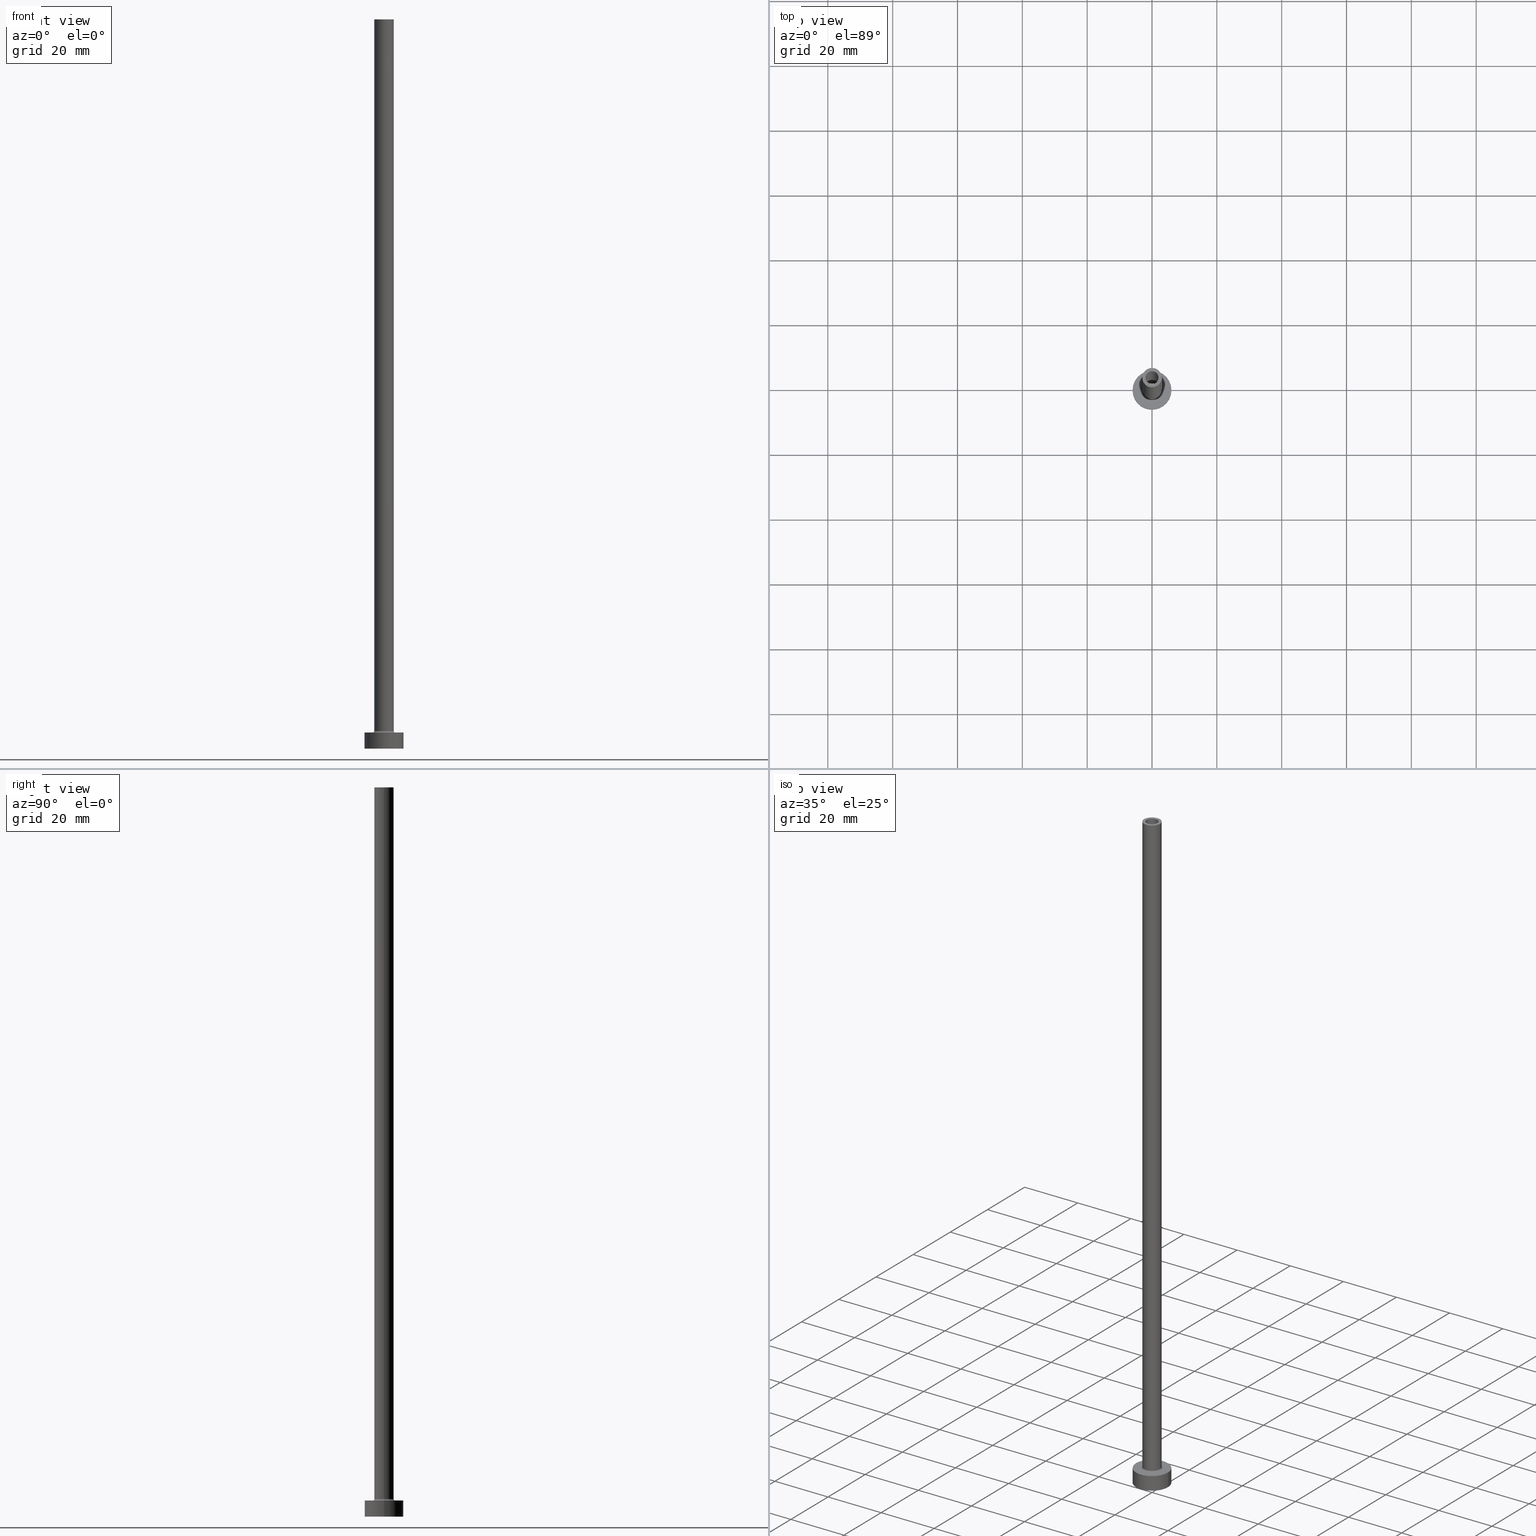
[diagram: canonical four-view strip — front | top / right | iso, engineering-drawing reading convention]
A machine part, canonical four-view strip (front | top / right | iso — engineering-drawing reading convention). The complete STEP part file that produces these views, byte-faithful:
ISO-10303-21;
HEADER;
FILE_DESCRIPTION (( 'STEP AP203' ),
    '1' );
FILE_NAME ('41ae.STEP',
    '2023-02-13T17:45:14',
    ( '' ),
    ( '' ),
    'SwSTEP 2.0',
    'SolidWorks 2019',
    '' );
FILE_SCHEMA (( 'CONFIG_CONTROL_DESIGN' ));
ENDSEC;

DATA;
#1 = LINE ( 'NONE', #429, #298 ) ;
#2 = LINE ( 'NONE', #175, #439 ) ;
#3 = EDGE_LOOP ( 'NONE', ( #438, #216, #252, #192 ) ) ;
#4 = APPLICATION_CONTEXT ( 'configuration controlled 3d designs of mechanical parts and assemblies' ) ;
#5 = DIRECTION ( 'NONE',  ( 0.000000000000000000, 0.000000000000000000, -1.000000000000000000 ) ) ;
#6 = EDGE_LOOP ( 'NONE', ( #37, #8 ) ) ;
#7 = DIRECTION ( 'NONE',  ( 0.000000000000000000, 0.000000000000000000, 1.000000000000000000 ) ) ;
#8 = ORIENTED_EDGE ( 'NONE', *, *, #83, .F. ) ;
#9 = DIRECTION ( 'NONE',  ( 0.000000000000000000, 0.000000000000000000, -1.000000000000000000 ) ) ;
#10 = ORIENTED_EDGE ( 'NONE', *, *, #350, .F. ) ;
#11 = DATE_TIME_ROLE ( 'creation_date' ) ;
#12 = ORIENTED_EDGE ( 'NONE', *, *, #214, .T. ) ;
#13 = CIRCLE ( 'NONE', #351, 3.000000000000000444 ) ;
#14 = ORIENTED_EDGE ( 'NONE', *, *, #276, .F. ) ;
#15 = PERSON_AND_ORGANIZATION_ROLE ( 'creator' ) ;
#16 = DIRECTION ( 'NONE',  ( 0.000000000000000000, 0.000000000000000000, 1.000000000000000000 ) ) ;
#17 = ADVANCED_FACE ( 'NONE', ( #50, #263 ), #377, .F. ) ;
#18 = APPROVAL_DATE_TIME ( #150, #193 ) ;
#19 = DIRECTION ( 'NONE',  ( 0.000000000000000000, 0.000000000000000000, 1.000000000000000000 ) ) ;
#20 = EDGE_CURVE ( 'NONE', #200, #260, #323, .T. ) ;
#21 = AXIS2_PLACEMENT_3D ( 'NONE', #108, #72, #80 ) ;
#22 = DIRECTION ( 'NONE',  ( 1.000000000000000000, 0.000000000000000000, 0.000000000000000000 ) ) ;
#23 = DIRECTION ( 'NONE',  ( 0.000000000000000000, 0.000000000000000000, -1.000000000000000000 ) ) ;
#24 = EDGE_CURVE ( 'NONE', #146, #291, #444, .T. ) ;
#25 = DIRECTION ( 'NONE',  ( 1.000000000000000000, 0.000000000000000000, 0.000000000000000000 ) ) ;
#26 = CARTESIAN_POINT ( 'NONE',  ( 2.149999999999999911, 2.632990618166809235E-16, 180.0000000000000000 ) ) ;
#27 = APPROVAL_PERSON_ORGANIZATION ( #445, #193, #262 ) ;
#28 = ADVANCED_FACE ( 'NONE', ( #304 ), #236, .F. ) ;
#29 = CARTESIAN_POINT ( 'NONE',  ( 6.000000000000000888, 7.347880794884120722E-16, 5.000000000000000000 ) ) ;
#30 = CARTESIAN_POINT ( 'NONE',  ( -3.000000000000000444, 0.000000000000000000, 225.0000000000000000 ) ) ;
#31 = DIRECTION ( 'NONE',  ( 0.000000000000000000, 0.000000000000000000, 1.000000000000000000 ) ) ;
#32 = MANIFOLD_SOLID_BREP ( 'Odebrat vysunut�m4', #68 ) ;
#33 = LOCAL_TIME ( 18, 45, 14.00000000000000000, #385 ) ;
#34 = DIRECTION ( 'NONE',  ( 0.000000000000000000, 0.000000000000000000, 1.000000000000000000 ) ) ;
#35 = CIRCLE ( 'NONE', #258, 2.149999999999999911 ) ;
#36 = CARTESIAN_POINT ( 'NONE',  ( 0.000000000000000000, 0.000000000000000000, 5.000000000000000000 ) ) ;
#37 = ORIENTED_EDGE ( 'NONE', *, *, #286, .F. ) ;
#38 = CARTESIAN_POINT ( 'NONE',  ( 0.000000000000000000, 0.000000000000000000, 180.0000000000000000 ) ) ;
#39 = ORIENTED_EDGE ( 'NONE', *, *, #457, .F. ) ;
#40 = CARTESIAN_POINT ( 'NONE',  ( 0.000000000000000000, 0.000000000000000000, 225.0000000000000000 ) ) ;
#41 = EDGE_LOOP ( 'NONE', ( #60, #10 ) ) ;
#42 = AXIS2_PLACEMENT_3D ( 'NONE', #171, #131, #205 ) ;
#43 = CARTESIAN_POINT ( 'NONE',  ( 0.000000000000000000, 0.000000000000000000, 225.0000000000000000 ) ) ;
#44 = ORIENTED_EDGE ( 'NONE', *, *, #296, .T. ) ;
#45 = APPLICATION_PROTOCOL_DEFINITION ( 'international standard', 'config_control_design', 1994, #4 ) ;
#46 = EDGE_LOOP ( 'NONE', ( #196, #39 ) ) ;
#47 = ADVANCED_FACE ( 'NONE', ( #268 ), #413, .T. ) ;
#48 = FACE_BOUND ( 'NONE', #294, .T. ) ;
#49 = LOCAL_TIME ( 18, 45, 14.00000000000000000, #335 ) ;
#50 = FACE_BOUND ( 'NONE', #384, .T. ) ;
#51 = CALENDAR_DATE ( 2023, 13, 2 ) ;
#52 = CARTESIAN_POINT ( 'NONE',  ( 0.000000000000000000, 0.000000000000000000, 5.000000000000000000 ) ) ;
#53 = CARTESIAN_POINT ( 'NONE',  ( 3.000000000000000444, 3.673940397442060361E-16, 5.500000000000005329 ) ) ;
#54 = ORIENTED_EDGE ( 'NONE', *, *, #225, .F. ) ;
#55 = TOROIDAL_SURFACE ( 'NONE', #428, 3.500000000000000444, 0.5000000000000000000 ) ;
#56 = PLANE ( 'NONE',  #191 ) ;
#57 = DIRECTION ( 'NONE',  ( 1.000000000000000000, 0.000000000000000000, -0.000000000000000000 ) ) ;
#58 = EDGE_CURVE ( 'NONE', #405, #177, #410, .T. ) ;
#59 = SECURITY_CLASSIFICATION ( '', '', #269 ) ;
#60 = ORIENTED_EDGE ( 'NONE', *, *, #99, .F. ) ;
#61 = DIRECTION ( 'NONE',  ( 0.000000000000000000, 0.000000000000000000, 1.000000000000000000 ) ) ;
#62 = CC_DESIGN_PERSON_AND_ORGANIZATION_ASSIGNMENT ( #154, #264, ( #369 ) ) ;
#63 = COORDINATED_UNIVERSAL_TIME_OFFSET ( 1, 0, .AHEAD. ) ;
#64 = DIRECTION ( 'NONE',  ( 0.000000000000000000, 0.000000000000000000, 1.000000000000000000 ) ) ;
#65 = AXIS2_PLACEMENT_3D ( 'NONE', #158, #230, #234 ) ;
#66 = CARTESIAN_POINT ( 'NONE',  ( 0.000000000000000000, 0.000000000000000000, 225.0000000000000000 ) ) ;
#67 = DIRECTION ( 'NONE',  ( -1.000000000000000000, 0.000000000000000000, 0.000000000000000000 ) ) ;
#68 = CLOSED_SHELL ( 'NONE', ( #403, #77, #223, #47, #134, #388, #460, #91, #226, #311, #76, #241, #17, #28 ) ) ;
#69 = DIRECTION ( 'NONE',  ( 0.000000000000000000, 0.000000000000000000, -1.000000000000000000 ) ) ;
#70 = CIRCLE ( 'NONE', #82, 0.4999999999999995559 ) ;
#71 = CIRCLE ( 'NONE', #21, 2.000000000000000000 ) ;
#72 = DIRECTION ( 'NONE',  ( 0.000000000000000000, 0.000000000000000000, 1.000000000000000000 ) ) ;
#73 = EDGE_LOOP ( 'NONE', ( #152, #109, #434, #12 ) ) ;
#74 = FACE_OUTER_BOUND ( 'NONE', #381, .T. ) ;
#75 = EDGE_LOOP ( 'NONE', ( #81, #198, #300, #194 ) ) ;
#76 = ADVANCED_FACE ( 'NONE', ( #308 ), #55, .F. ) ;
#77 = ADVANCED_FACE ( 'NONE', ( #307 ), #270, .F. ) ;
#78 = CARTESIAN_POINT ( 'NONE',  ( 6.000000000000000888, 7.347880794884120722E-16, 0.000000000000000000 ) ) ;
#79 = ORIENTED_EDGE ( 'NONE', *, *, #138, .T. ) ;
#80 = DIRECTION ( 'NONE',  ( 1.000000000000000000, 0.000000000000000000, 0.000000000000000000 ) ) ;
#81 = ORIENTED_EDGE ( 'NONE', *, *, #58, .F. ) ;
#82 = AXIS2_PLACEMENT_3D ( 'NONE', #206, #426, #314 ) ;
#83 = EDGE_CURVE ( 'NONE', #256, #106, #189, .T. ) ;
#84 = FACE_OUTER_BOUND ( 'NONE', #436, .T. ) ;
#85 = VERTEX_POINT ( 'NONE', #30 ) ;
#86 = CARTESIAN_POINT ( 'NONE',  ( 0.000000000000000000, 0.000000000000000000, 5.500000000000005329 ) ) ;
#87 = PERSON_AND_ORGANIZATION ( #124, #454 ) ;
#88 = APPROVAL_PERSON_ORGANIZATION ( #272, #237, #309 ) ;
#89 = VERTEX_POINT ( 'NONE', #105 ) ;
#90 = CARTESIAN_POINT ( 'NONE',  ( 0.000000000000000000, 0.000000000000000000, 225.0000000000000000 ) ) ;
#91 = ADVANCED_FACE ( 'NONE', ( #318, #424 ), #166, .F. ) ;
#92 = FACE_OUTER_BOUND ( 'NONE', #443, .T. ) ;
#93 = VERTEX_POINT ( 'NONE', #456 ) ;
#94 = MECHANICAL_CONTEXT ( 'NONE', #290, 'mechanical' ) ;
#95 = DIRECTION ( 'NONE',  ( 0.000000000000000000, 0.000000000000000000, 1.000000000000000000 ) ) ;
#96 = CALENDAR_DATE ( 2023, 13, 2 ) ;
#97 = FACE_OUTER_BOUND ( 'NONE', #73, .T. ) ;
#98 = CARTESIAN_POINT ( 'NONE',  ( 0.000000000000000000, 0.000000000000000000, 5.000000000000000000 ) ) ;
#99 = EDGE_CURVE ( 'NONE', #336, #405, #107, .T. ) ;
#100 = FACE_OUTER_BOUND ( 'NONE', #141, .T. ) ;
#101 = EDGE_CURVE ( 'NONE', #111, #146, #70, .T. ) ;
#102 = CALENDAR_DATE ( 2023, 13, 2 ) ;
#103 = CIRCLE ( 'NONE', #238, 2.000000000000000000 ) ;
#104 = CC_DESIGN_PERSON_AND_ORGANIZATION_ASSIGNMENT ( #341, #305, ( #273 ) ) ;
#105 = CARTESIAN_POINT ( 'NONE',  ( 2.149999999999999911, 2.632990618166809235E-16, 0.000000000000000000 ) ) ;
#106 = VERTEX_POINT ( 'NONE', #347 ) ;
#107 = CIRCLE ( 'NONE', #310, 2.000000000000000000 ) ;
#108 = CARTESIAN_POINT ( 'NONE',  ( 0.000000000000000000, 0.000000000000000000, 180.0000000000000000 ) ) ;
#109 = ORIENTED_EDGE ( 'NONE', *, *, #392, .F. ) ;
#110 = DIRECTION ( 'NONE',  ( 1.000000000000000000, 0.000000000000000000, 0.000000000000000000 ) ) ;
#111 = VERTEX_POINT ( 'NONE', #278 ) ;
#112 = EDGE_CURVE ( 'NONE', #431, #291, #315, .T. ) ;
#113 = CYLINDRICAL_SURFACE ( 'NONE', #173, 6.000000000000000888 ) ;
#114 = ORIENTED_EDGE ( 'NONE', *, *, #401, .T. ) ;
#115 = CARTESIAN_POINT ( 'NONE',  ( 0.000000000000000000, 0.000000000000000000, 5.000000000000000000 ) ) ;
#116 = ORIENTED_EDGE ( 'NONE', *, *, #101, .T. ) ;
#117 = DIRECTION ( 'NONE',  ( 0.000000000000000000, 0.000000000000000000, -1.000000000000000000 ) ) ;
#118 = LOCAL_TIME ( 18, 45, 14.00000000000000000, #379 ) ;
#119 = EDGE_LOOP ( 'NONE', ( #339, #121, #184, #228 ) ) ;
#120 = AXIS2_PLACEMENT_3D ( 'NONE', #98, #168, #67 ) ;
#121 = ORIENTED_EDGE ( 'NONE', *, *, #261, .T. ) ;
#122 = ORIENTED_EDGE ( 'NONE', *, *, #392, .T. ) ;
#123 = DIRECTION ( 'NONE',  ( 1.000000000000000000, 0.000000000000000000, 0.000000000000000000 ) ) ;
#124 = PERSON ( 'NEUR�EN�', 'NEUR�EN�', 'NEUR�EN�', ('NEUR�EN�'), ('NEUR�EN�'), ('NEUR�EN�') ) ;
#125 = CALENDAR_DATE ( 2023, 13, 2 ) ;
#126 = DIRECTION ( 'NONE',  ( 1.000000000000000000, 0.000000000000000000, 0.000000000000000000 ) ) ;
#127 = DIRECTION ( 'NONE',  ( -1.000000000000000000, 0.000000000000000000, 0.000000000000000000 ) ) ;
#128 = CARTESIAN_POINT ( 'NONE',  ( 0.000000000000000000, 0.000000000000000000, 5.500000000000005329 ) ) ;
#129 = AXIS2_PLACEMENT_3D ( 'NONE', #43, #185, #332 ) ;
#130 = PERSON_AND_ORGANIZATION_ROLE ( 'classification_officer' ) ;
#131 = DIRECTION ( 'NONE',  ( 0.000000000000000000, 0.000000000000000000, 1.000000000000000000 ) ) ;
#132 = DIRECTION ( 'NONE',  ( 1.000000000000000000, 0.000000000000000000, -0.000000000000000000 ) ) ;
#133 = DIRECTION ( 'NONE',  ( 1.000000000000000000, 0.000000000000000000, 0.000000000000000000 ) ) ;
#134 = ADVANCED_FACE ( 'NONE', ( #393 ), #358, .T. ) ;
#135 = AXIS2_PLACEMENT_3D ( 'NONE', #204, #349, #136 ) ;
#136 = DIRECTION ( 'NONE',  ( 1.000000000000000000, 0.000000000000000000, 0.000000000000000000 ) ) ;
#137 = CARTESIAN_POINT ( 'NONE',  ( -2.149999999999999911, 0.000000000000000000, 180.0000000000000000 ) ) ;
#138 = EDGE_CURVE ( 'NONE', #260, #256, #461, .T. ) ;
#139 = DIRECTION ( 'NONE',  ( -0.000000000000000000, -0.000000000000000000, -1.000000000000000000 ) ) ;
#140 = EDGE_CURVE ( 'NONE', #190, #367, #383, .T. ) ;
#141 = EDGE_LOOP ( 'NONE', ( #340, #116, #54, #396 ) ) ;
#142 = DIRECTION ( 'NONE',  ( -0.000000000000000000, -0.000000000000000000, -1.000000000000000000 ) ) ;
#143 = AXIS2_PLACEMENT_3D ( 'NONE', #459, #400, #176 ) ;
#144 = ORIENTED_EDGE ( 'NONE', *, *, #356, .T. ) ;
#145 = DIRECTION ( 'NONE',  ( 1.000000000000000000, 0.000000000000000000, 0.000000000000000000 ) ) ;
#146 = VERTEX_POINT ( 'NONE', #169 ) ;
#147 = DIRECTION ( 'NONE',  ( 1.000000000000000000, 0.000000000000000000, 0.000000000000000000 ) ) ;
#148 = ORIENTED_EDGE ( 'NONE', *, *, #163, .F. ) ;
#149 = PRODUCT_RELATED_PRODUCT_CATEGORY ( 'detail', '', ( #369 ) ) ;
#150 = DATE_AND_TIME ( #125, #235 ) ;
#151 = AXIS2_PLACEMENT_3D ( 'NONE', #338, #442, #22 ) ;
#152 = ORIENTED_EDGE ( 'NONE', *, *, #356, .F. ) ;
#153 = CIRCLE ( 'NONE', #135, 2.149999999999999911 ) ;
#154 = PERSON_AND_ORGANIZATION ( #124, #454 ) ;
#155 = CARTESIAN_POINT ( 'NONE',  ( 0.000000000000000000, 0.000000000000000000, 180.0000000000000000 ) ) ;
#156 = CALENDAR_DATE ( 2023, 13, 2 ) ;
#157 = DIRECTION ( 'NONE',  ( -0.000000000000000000, -0.000000000000000000, -1.000000000000000000 ) ) ;
#158 = CARTESIAN_POINT ( 'NONE',  ( 0.000000000000000000, 0.000000000000000000, 0.000000000000000000 ) ) ;
#159 = DIRECTION ( 'NONE',  ( 0.000000000000000000, 0.000000000000000000, -1.000000000000000000 ) ) ;
#160 = CIRCLE ( 'NONE', #329, 3.000000000000000444 ) ;
#161 = DIRECTION ( 'NONE',  ( 1.000000000000000000, 0.000000000000000000, -0.000000000000000000 ) ) ;
#162 = ORIENTED_EDGE ( 'NONE', *, *, #140, .F. ) ;
#163 = EDGE_CURVE ( 'NONE', #431, #111, #375, .T. ) ;
#164 = DIRECTION ( 'NONE',  ( -1.000000000000000000, 0.000000000000000000, 0.000000000000000000 ) ) ;
#165 = AXIS2_PLACEMENT_3D ( 'NONE', #224, #157, #123 ) ;
#166 = PLANE ( 'NONE',  #313 ) ;
#167 = CIRCLE ( 'NONE', #229, 3.500000000000000444 ) ;
#168 = DIRECTION ( 'NONE',  ( -0.000000000000000000, -0.000000000000000000, -1.000000000000000000 ) ) ;
#169 = CARTESIAN_POINT ( 'NONE',  ( -3.500000000000000444, 4.286263797015737088E-16, 5.000000000000002665 ) ) ;
#170 = EDGE_CURVE ( 'NONE', #367, #190, #153, .T. ) ;
#171 = CARTESIAN_POINT ( 'NONE',  ( 0.000000000000000000, 0.000000000000000000, 5.500000000000005329 ) ) ;
#172 = UNCERTAINTY_MEASURE_WITH_UNIT (LENGTH_MEASURE( 1.000000000000000082E-05 ), #197, 'distance_accuracy_value', 'NONE');
#173 = AXIS2_PLACEMENT_3D ( 'NONE', #115, #433, #404 ) ;
#174 = CIRCLE ( 'NONE', #244, 6.000000000000000888 ) ;
#175 = CARTESIAN_POINT ( 'NONE',  ( -3.000000000000000444, 0.000000000000000000, 225.0000000000000000 ) ) ;
#176 = DIRECTION ( 'NONE',  ( -1.000000000000000000, 0.000000000000000000, 0.000000000000000000 ) ) ;
#177 = VERTEX_POINT ( 'NONE', #242 ) ;
#178 = DIRECTION ( 'NONE',  ( 0.000000000000000000, 0.000000000000000000, 1.000000000000000000 ) ) ;
#179 = EDGE_LOOP ( 'NONE', ( #302, #364, #44, #370 ) ) ;
#180 = EDGE_CURVE ( 'NONE', #336, #93, #281, .T. ) ;
#181 = CC_DESIGN_APPROVAL ( #193, ( #273 ) ) ;
#182 = VECTOR ( 'NONE', #139, 1000.000000000000000 ) ;
#183 = PLANE ( 'NONE',  #288 ) ;
#184 = ORIENTED_EDGE ( 'NONE', *, *, #457, .T. ) ;
#185 = DIRECTION ( 'NONE',  ( 0.000000000000000000, 0.000000000000000000, -1.000000000000000000 ) ) ;
#186 = ORIENTED_EDGE ( 'NONE', *, *, #24, .F. ) ;
#187 = APPROVAL ( #376, 'NEUR�EN�' ) ;
#188 = APPROVAL_ROLE ( '' ) ;
#189 = CIRCLE ( 'NONE', #247, 6.000000000000000888 ) ;
#190 = VERTEX_POINT ( 'NONE', #26 ) ;
#191 = AXIS2_PLACEMENT_3D ( 'NONE', #416, #414, #161 ) ;
#192 = ORIENTED_EDGE ( 'NONE', *, *, #180, .F. ) ;
#193 = APPROVAL ( #412, 'NEUR�EN�' ) ;
#194 = ORIENTED_EDGE ( 'NONE', *, *, #382, .F. ) ;
#195 = COORDINATED_UNIVERSAL_TIME_OFFSET ( 1, 0, .AHEAD. ) ;
#196 = ORIENTED_EDGE ( 'NONE', *, *, #203, .F. ) ;
#197 =( LENGTH_UNIT ( ) NAMED_UNIT ( * ) SI_UNIT ( .MILLI., .METRE. ) );
#198 = ORIENTED_EDGE ( 'NONE', *, *, #350, .T. ) ;
#199 = VECTOR ( 'NONE', #117, 1000.000000000000000 ) ;
#200 = VERTEX_POINT ( 'NONE', #275 ) ;
#201 = SHAPE_DEFINITION_REPRESENTATION ( #372, #222 ) ;
#202 = DIRECTION ( 'NONE',  ( 1.000000000000000000, 0.000000000000000000, 0.000000000000000000 ) ) ;
#203 = EDGE_CURVE ( 'NONE', #221, #89, #35, .T. ) ;
#204 = CARTESIAN_POINT ( 'NONE',  ( 0.000000000000000000, 0.000000000000000000, 180.0000000000000000 ) ) ;
#205 = DIRECTION ( 'NONE',  ( 1.000000000000000000, 0.000000000000000000, 0.000000000000000000 ) ) ;
#206 = CARTESIAN_POINT ( 'NONE',  ( -3.500000000000000444, 4.286263797015737088E-16, 5.500000000000005329 ) ) ;
#207 = AXIS2_PLACEMENT_3D ( 'NONE', #446, #233, #164 ) ;
#208 = CARTESIAN_POINT ( 'NONE',  ( 0.000000000000000000, 0.000000000000000000, 5.500000000000005329 ) ) ;
#209 = AXIS2_PLACEMENT_3D ( 'NONE', #38, #178, #110 ) ;
#210 = DIRECTION ( 'NONE',  ( 1.000000000000000000, 0.000000000000000000, 0.000000000000000000 ) ) ;
#211 = VERTEX_POINT ( 'NONE', #387 ) ;
#212 = LINE ( 'NONE', #295, #199 ) ;
#213 = ORIENTED_EDGE ( 'NONE', *, *, #225, .T. ) ;
#214 = EDGE_CURVE ( 'NONE', #111, #431, #13, .T. ) ;
#215 = CARTESIAN_POINT ( 'NONE',  ( 0.000000000000000000, 0.000000000000000000, 225.0000000000000000 ) ) ;
#216 = ORIENTED_EDGE ( 'NONE', *, *, #58, .T. ) ;
#217 = VECTOR ( 'NONE', #395, 1000.000000000000000 ) ;
#218 = FACE_OUTER_BOUND ( 'NONE', #3, .T. ) ;
#219 = EDGE_LOOP ( 'NONE', ( #287, #144, #297, #399 ) ) ;
#220 = DIRECTION ( 'NONE',  ( 0.000000000000000000, 0.000000000000000000, 1.000000000000000000 ) ) ;
#221 = VERTEX_POINT ( 'NONE', #423 ) ;
#222 = ADVANCED_BREP_SHAPE_REPRESENTATION ( '41ae', ( #32, #65 ), #257 ) ;
#223 = ADVANCED_FACE ( 'NONE', ( #100 ), #406, .F. ) ;
#224 = CARTESIAN_POINT ( 'NONE',  ( 0.000000000000000000, 0.000000000000000000, 5.000000000000000000 ) ) ;
#225 = EDGE_CURVE ( 'NONE', #291, #146, #167, .T. ) ;
#226 = ADVANCED_FACE ( 'NONE', ( #97 ), #389, .T. ) ;
#227 = CC_DESIGN_APPROVAL ( #187, ( #324 ) ) ;
#228 = ORIENTED_EDGE ( 'NONE', *, *, #353, .F. ) ;
#229 = AXIS2_PLACEMENT_3D ( 'NONE', #354, #317, #421 ) ;
#230 = DIRECTION ( 'NONE',  ( 0.000000000000000000, 0.000000000000000000, 1.000000000000000000 ) ) ;
#231 = DIRECTION ( 'NONE',  ( -0.000000000000000000, -0.000000000000000000, -1.000000000000000000 ) ) ;
#232 =( NAMED_UNIT ( * ) SI_UNIT ( $, .STERADIAN. ) SOLID_ANGLE_UNIT ( ) );
#233 = DIRECTION ( 'NONE',  ( 0.000000000000000000, 0.000000000000000000, -1.000000000000000000 ) ) ;
#234 = DIRECTION ( 'NONE',  ( 1.000000000000000000, 0.000000000000000000, 0.000000000000000000 ) ) ;
#235 = LOCAL_TIME ( 18, 45, 14.00000000000000000, #195 ) ;
#236 = CYLINDRICAL_SURFACE ( 'NONE', #207, 2.000000000000000000 ) ;
#237 = APPROVAL ( #352, 'NEUR�EN�' ) ;
#238 = AXIS2_PLACEMENT_3D ( 'NONE', #215, #255, #145 ) ;
#239 = APPROVAL_DATE_TIME ( #391, #237 ) ;
#240 = DIRECTION ( 'NONE',  ( 1.000000000000000000, 0.000000000000000000, 0.000000000000000000 ) ) ;
#241 = ADVANCED_FACE ( 'NONE', ( #84 ), #363, .F. ) ;
#242 = CARTESIAN_POINT ( 'NONE',  ( 2.000000000000000000, 2.449293598294706414E-16, 180.0000000000000000 ) ) ;
#243 = CARTESIAN_POINT ( 'NONE',  ( 0.000000000000000000, 0.000000000000000000, 0.000000000000000000 ) ) ;
#244 = AXIS2_PLACEMENT_3D ( 'NONE', #36, #259, #210 ) ;
#245 = DIRECTION ( 'NONE',  ( 0.000000000000000000, 0.000000000000000000, -1.000000000000000000 ) ) ;
#246 = CARTESIAN_POINT ( 'NONE',  ( -2.000000000000000000, 0.000000000000000000, 225.0000000000000000 ) ) ;
#247 = AXIS2_PLACEMENT_3D ( 'NONE', #271, #95, #373 ) ;
#248 = DIRECTION ( 'NONE',  ( -1.000000000000000000, 0.000000000000000000, 0.000000000000000000 ) ) ;
#249 = ORIENTED_EDGE ( 'NONE', *, *, #20, .T. ) ;
#250 = CIRCLE ( 'NONE', #266, 3.000000000000000444 ) ;
#251 = CARTESIAN_POINT ( 'NONE',  ( 0.000000000000000000, 0.000000000000000000, 186.0811183182042896 ) ) ;
#252 = ORIENTED_EDGE ( 'NONE', *, *, #401, .F. ) ;
#253 = CARTESIAN_POINT ( 'NONE',  ( -2.000000000000000000, 0.000000000000000000, 225.0000000000000000 ) ) ;
#254 = ORIENTED_EDGE ( 'NONE', *, *, #261, .F. ) ;
#255 = DIRECTION ( 'NONE',  ( 0.000000000000000000, 0.000000000000000000, 1.000000000000000000 ) ) ;
#256 = VERTEX_POINT ( 'NONE', #78 ) ;
#257 =( GEOMETRIC_REPRESENTATION_CONTEXT ( 3 ) GLOBAL_UNCERTAINTY_ASSIGNED_CONTEXT ( ( #172 ) ) GLOBAL_UNIT_ASSIGNED_CONTEXT ( ( #197, #450, #232 ) ) REPRESENTATION_CONTEXT ( 'NONE', 'WORKASPACE' ) );
#258 = AXIS2_PLACEMENT_3D ( 'NONE', #243, #422, #386 ) ;
#259 = DIRECTION ( 'NONE',  ( 0.000000000000000000, 0.000000000000000000, 1.000000000000000000 ) ) ;
#260 = VERTEX_POINT ( 'NONE', #289 ) ;
#261 = EDGE_CURVE ( 'NONE', #190, #89, #212, .T. ) ;
#262 = APPROVAL_ROLE ( '' ) ;
#263 = FACE_OUTER_BOUND ( 'NONE', #343, .T. ) ;
#264 = PERSON_AND_ORGANIZATION_ROLE ( 'design_owner' ) ;
#265 = ORIENTED_EDGE ( 'NONE', *, *, #276, .T. ) ;
#266 = AXIS2_PLACEMENT_3D ( 'NONE', #427, #7, #407 ) ;
#267 = PERSON_AND_ORGANIZATION ( #124, #454 ) ;
#268 = FACE_OUTER_BOUND ( 'NONE', #219, .T. ) ;
#269 = SECURITY_CLASSIFICATION_LEVEL ( 'unclassified' ) ;
#270 = CYLINDRICAL_SURFACE ( 'NONE', #453, 2.149999999999999911 ) ;
#271 = CARTESIAN_POINT ( 'NONE',  ( 0.000000000000000000, 0.000000000000000000, 0.000000000000000000 ) ) ;
#272 = PERSON_AND_ORGANIZATION ( #124, #454 ) ;
#273 = PRODUCT_DEFINITION_FORMATION_WITH_SPECIFIED_SOURCE ( 'LIBOVOLN�', '', #369, .NOT_KNOWN. ) ;
#274 = DIRECTION ( 'NONE',  ( 0.000000000000000000, 0.000000000000000000, 1.000000000000000000 ) ) ;
#275 = CARTESIAN_POINT ( 'NONE',  ( -6.000000000000000888, 0.000000000000000000, 5.000000000000000000 ) ) ;
#276 = EDGE_CURVE ( 'NONE', #260, #200, #174, .T. ) ;
#277 = CC_DESIGN_PERSON_AND_ORGANIZATION_ASSIGNMENT ( #267, #15, ( #324 ) ) ;
#278 = CARTESIAN_POINT ( 'NONE',  ( -3.000000000000000444, 0.000000000000000000, 5.500000000000005329 ) ) ;
#279 = AXIS2_PLACEMENT_3D ( 'NONE', #155, #19, #57 ) ;
#280 = CARTESIAN_POINT ( 'NONE',  ( 3.500000000000000444, 0.000000000000000000, 5.500000000000005329 ) ) ;
#281 = LINE ( 'NONE', #246, #365 ) ;
#282 = ORIENTED_EDGE ( 'NONE', *, *, #24, .T. ) ;
#283 = DESIGN_CONTEXT ( 'detailed design', #4, 'design' ) ;
#284 = FACE_BOUND ( 'NONE', #41, .T. ) ;
#285 = DIRECTION ( 'NONE',  ( 0.000000000000000000, 0.000000000000000000, 1.000000000000000000 ) ) ;
#286 = EDGE_CURVE ( 'NONE', #106, #256, #425, .T. ) ;
#287 = ORIENTED_EDGE ( 'NONE', *, *, #326, .F. ) ;
#288 = AXIS2_PLACEMENT_3D ( 'NONE', #437, #285, #435 ) ;
#289 = CARTESIAN_POINT ( 'NONE',  ( 6.000000000000000888, 7.347880794884120722E-16, 5.000000000000000000 ) ) ;
#290 = APPLICATION_CONTEXT ( 'configuration controlled 3d designs of mechanical parts and assemblies' ) ;
#291 = VERTEX_POINT ( 'NONE', #368 ) ;
#292 = CC_DESIGN_DATE_AND_TIME_ASSIGNMENT ( #452, #419, ( #59 ) ) ;
#293 = CARTESIAN_POINT ( 'NONE',  ( 3.000000000000000444, 3.673940397442060361E-16, 225.0000000000000000 ) ) ;
#294 = EDGE_LOOP ( 'NONE', ( #213, #282 ) ) ;
#295 = CARTESIAN_POINT ( 'NONE',  ( 2.149999999999999911, 2.632990618166809235E-16, 186.0811183182042896 ) ) ;
#296 = EDGE_CURVE ( 'NONE', #200, #106, #398, .T. ) ;
#297 = ORIENTED_EDGE ( 'NONE', *, *, #163, .T. ) ;
#298 = VECTOR ( 'NONE', #5, 1000.000000000000000 ) ;
#299 = PERSON_AND_ORGANIZATION ( #124, #454 ) ;
#300 = ORIENTED_EDGE ( 'NONE', *, *, #180, .T. ) ;
#301 = APPROVAL_DATE_TIME ( #371, #187 ) ;
#302 = ORIENTED_EDGE ( 'NONE', *, *, #138, .F. ) ;
#303 = DATE_AND_TIME ( #156, #118 ) ;
#304 = FACE_OUTER_BOUND ( 'NONE', #75, .T. ) ;
#305 = PERSON_AND_ORGANIZATION_ROLE ( 'creator' ) ;
#306 = AXIS2_PLACEMENT_3D ( 'NONE', #359, #220, #321 ) ;
#307 = FACE_OUTER_BOUND ( 'NONE', #119, .T. ) ;
#308 = FACE_OUTER_BOUND ( 'NONE', #346, .T. ) ;
#309 = APPROVAL_ROLE ( '' ) ;
#310 = AXIS2_PLACEMENT_3D ( 'NONE', #66, #64, #202 ) ;
#311 = ADVANCED_FACE ( 'NONE', ( #284, #74 ), #183, .T. ) ;
#312 = DIRECTION ( 'NONE',  ( 1.000000000000000000, 0.000000000000000000, 0.000000000000000000 ) ) ;
#313 = AXIS2_PLACEMENT_3D ( 'NONE', #455, #61, #132 ) ;
#314 = DIRECTION ( 'NONE',  ( -1.000000000000000000, 1.224646799147354440E-16, 0.000000000000000000 ) ) ;
#315 = CIRCLE ( 'NONE', #447, 0.5000000000000004441 ) ;
#316 = DIRECTION ( 'NONE',  ( 0.000000000000000000, -1.000000000000000000, 0.000000000000000000 ) ) ;
#317 = DIRECTION ( 'NONE',  ( -0.000000000000000000, -0.000000000000000000, -1.000000000000000000 ) ) ;
#318 = FACE_BOUND ( 'NONE', #46, .T. ) ;
#319 = CC_DESIGN_PERSON_AND_ORGANIZATION_ASSIGNMENT ( #299, #440, ( #273 ) ) ;
#320 = CARTESIAN_POINT ( 'NONE',  ( -6.000000000000000888, 0.000000000000000000, 5.000000000000000000 ) ) ;
#321 = DIRECTION ( 'NONE',  ( 1.000000000000000000, 0.000000000000000000, 0.000000000000000000 ) ) ;
#322 = ORIENTED_EDGE ( 'NONE', *, *, #203, .T. ) ;
#323 = CIRCLE ( 'NONE', #417, 6.000000000000000888 ) ;
#324 = PRODUCT_DEFINITION ( 'NEZN�M�', '', #273, #283 ) ;
#325 = FACE_OUTER_BOUND ( 'NONE', #179, .T. ) ;
#326 = EDGE_CURVE ( 'NONE', #211, #85, #160, .T. ) ;
#327 = ORIENTED_EDGE ( 'NONE', *, *, #382, .T. ) ;
#328 = CC_DESIGN_SECURITY_CLASSIFICATION ( #59, ( #273 ) ) ;
#329 = AXIS2_PLACEMENT_3D ( 'NONE', #40, #361, #147 ) ;
#330 = LINE ( 'NONE', #293, #182 ) ;
#331 = ORIENTED_EDGE ( 'NONE', *, *, #83, .T. ) ;
#332 = DIRECTION ( 'NONE',  ( -1.000000000000000000, 0.000000000000000000, 0.000000000000000000 ) ) ;
#333 = ORIENTED_EDGE ( 'NONE', *, *, #101, .F. ) ;
#334 = VECTOR ( 'NONE', #159, 1000.000000000000000 ) ;
#335 = COORDINATED_UNIVERSAL_TIME_OFFSET ( 1, 0, .AHEAD. ) ;
#336 = VERTEX_POINT ( 'NONE', #253 ) ;
#337 = AXIS2_PLACEMENT_3D ( 'NONE', #355, #31, #133 ) ;
#338 = CARTESIAN_POINT ( 'NONE',  ( 0.000000000000000000, 0.000000000000000000, 0.000000000000000000 ) ) ;
#339 = ORIENTED_EDGE ( 'NONE', *, *, #170, .T. ) ;
#340 = ORIENTED_EDGE ( 'NONE', *, *, #214, .F. ) ;
#341 = PERSON_AND_ORGANIZATION ( #124, #454 ) ;
#342 = EDGE_CURVE ( 'NONE', #85, #111, #2, .T. ) ;
#343 = EDGE_LOOP ( 'NONE', ( #362, #162 ) ) ;
#344 = CARTESIAN_POINT ( 'NONE',  ( 2.000000000000000000, 2.449293598294706414E-16, 225.0000000000000000 ) ) ;
#345 = CARTESIAN_POINT ( 'NONE',  ( 2.000000000000000000, 2.449293598294706414E-16, 225.0000000000000000 ) ) ;
#346 = EDGE_LOOP ( 'NONE', ( #333, #148, #408, #186 ) ) ;
#347 = CARTESIAN_POINT ( 'NONE',  ( -6.000000000000000888, 0.000000000000000000, 0.000000000000000000 ) ) ;
#348 = LOCAL_TIME ( 18, 45, 14.00000000000000000, #63 ) ;
#349 = DIRECTION ( 'NONE',  ( 0.000000000000000000, 0.000000000000000000, 1.000000000000000000 ) ) ;
#350 = EDGE_CURVE ( 'NONE', #405, #336, #103, .T. ) ;
#351 = AXIS2_PLACEMENT_3D ( 'NONE', #208, #34, #312 ) ;
#352 = APPROVAL_STATUS ( 'not_yet_approved' ) ;
#353 = EDGE_CURVE ( 'NONE', #367, #221, #1, .T. ) ;
#354 = CARTESIAN_POINT ( 'NONE',  ( 0.000000000000000000, 0.000000000000000000, 5.000000000000000000 ) ) ;
#355 = CARTESIAN_POINT ( 'NONE',  ( 0.000000000000000000, 0.000000000000000000, 180.0000000000000000 ) ) ;
#356 = EDGE_CURVE ( 'NONE', #211, #431, #330, .T. ) ;
#357 = AXIS2_PLACEMENT_3D ( 'NONE', #90, #231, #380 ) ;
#358 = CYLINDRICAL_SURFACE ( 'NONE', #120, 6.000000000000000888 ) ;
#359 = CARTESIAN_POINT ( 'NONE',  ( 0.000000000000000000, 0.000000000000000000, 0.000000000000000000 ) ) ;
#360 = ORIENTED_EDGE ( 'NONE', *, *, #353, .T. ) ;
#361 = DIRECTION ( 'NONE',  ( 0.000000000000000000, 0.000000000000000000, 1.000000000000000000 ) ) ;
#362 = ORIENTED_EDGE ( 'NONE', *, *, #170, .F. ) ;
#363 = CYLINDRICAL_SURFACE ( 'NONE', #390, 2.149999999999999911 ) ;
#364 = ORIENTED_EDGE ( 'NONE', *, *, #20, .F. ) ;
#365 = VECTOR ( 'NONE', #69, 1000.000000000000000 ) ;
#366 = CYLINDRICAL_SURFACE ( 'NONE', #129, 2.000000000000000000 ) ;
#367 = VERTEX_POINT ( 'NONE', #137 ) ;
#368 = CARTESIAN_POINT ( 'NONE',  ( 3.500000000000000444, 0.000000000000000000, 5.000000000000002665 ) ) ;
#369 = PRODUCT ( '41ae', '41ae', '', ( #94 ) ) ;
#370 = ORIENTED_EDGE ( 'NONE', *, *, #286, .T. ) ;
#371 = DATE_AND_TIME ( #51, #49 ) ;
#372 = PRODUCT_DEFINITION_SHAPE ( 'NONE', 'NONE',  #324 ) ;
#373 = DIRECTION ( 'NONE',  ( 1.000000000000000000, 0.000000000000000000, 0.000000000000000000 ) ) ;
#374 = CIRCLE ( 'NONE', #151, 2.149999999999999911 ) ;
#375 = CIRCLE ( 'NONE', #42, 3.000000000000000444 ) ;
#376 = APPROVAL_STATUS ( 'not_yet_approved' ) ;
#377 = PLANE ( 'NONE',  #279 ) ;
#378 = CC_DESIGN_PERSON_AND_ORGANIZATION_ASSIGNMENT ( #409, #130, ( #59 ) ) ;
#379 = COORDINATED_UNIVERSAL_TIME_OFFSET ( 1, 0, .AHEAD. ) ;
#380 = DIRECTION ( 'NONE',  ( -1.000000000000000000, 0.000000000000000000, 0.000000000000000000 ) ) ;
#381 = EDGE_LOOP ( 'NONE', ( #122, #441 ) ) ;
#382 = EDGE_CURVE ( 'NONE', #177, #93, #420, .T. ) ;
#383 = CIRCLE ( 'NONE', #337, 2.149999999999999911 ) ;
#384 = EDGE_LOOP ( 'NONE', ( #114, #327 ) ) ;
#385 = COORDINATED_UNIVERSAL_TIME_OFFSET ( 1, 0, .AHEAD. ) ;
#386 = DIRECTION ( 'NONE',  ( 1.000000000000000000, 0.000000000000000000, 0.000000000000000000 ) ) ;
#387 = CARTESIAN_POINT ( 'NONE',  ( 3.000000000000000444, 3.673940397442060361E-16, 225.0000000000000000 ) ) ;
#388 = ADVANCED_FACE ( 'NONE', ( #325 ), #113, .T. ) ;
#389 = CYLINDRICAL_SURFACE ( 'NONE', #143, 3.000000000000000444 ) ;
#390 = AXIS2_PLACEMENT_3D ( 'NONE', #251, #9, #248 ) ;
#391 = DATE_AND_TIME ( #102, #348 ) ;
#392 = EDGE_CURVE ( 'NONE', #85, #211, #250, .T. ) ;
#393 = FACE_OUTER_BOUND ( 'NONE', #451, .T. ) ;
#394 = DIRECTION ( 'NONE',  ( -0.000000000000000000, -0.000000000000000000, -1.000000000000000000 ) ) ;
#395 = DIRECTION ( 'NONE',  ( -0.000000000000000000, -0.000000000000000000, -1.000000000000000000 ) ) ;
#396 = ORIENTED_EDGE ( 'NONE', *, *, #112, .F. ) ;
#397 = VECTOR ( 'NONE', #394, 1000.000000000000000 ) ;
#398 = LINE ( 'NONE', #320, #217 ) ;
#399 = ORIENTED_EDGE ( 'NONE', *, *, #342, .F. ) ;
#400 = DIRECTION ( 'NONE',  ( -0.000000000000000000, -0.000000000000000000, -1.000000000000000000 ) ) ;
#401 = EDGE_CURVE ( 'NONE', #93, #177, #71, .T. ) ;
#402 = ORIENTED_EDGE ( 'NONE', *, *, #296, .F. ) ;
#403 = ADVANCED_FACE ( 'NONE', ( #218 ), #366, .F. ) ;
#404 = DIRECTION ( 'NONE',  ( -1.000000000000000000, 0.000000000000000000, 0.000000000000000000 ) ) ;
#405 = VERTEX_POINT ( 'NONE', #344 ) ;
#406 = TOROIDAL_SURFACE ( 'NONE', #432, 3.500000000000000444, 0.5000000000000000000 ) ;
#407 = DIRECTION ( 'NONE',  ( 1.000000000000000000, 0.000000000000000000, 0.000000000000000000 ) ) ;
#408 = ORIENTED_EDGE ( 'NONE', *, *, #112, .T. ) ;
#409 = PERSON_AND_ORGANIZATION ( #124, #454 ) ;
#410 = LINE ( 'NONE', #345, #334 ) ;
#411 = ORIENTED_EDGE ( 'NONE', *, *, #140, .T. ) ;
#412 = APPROVAL_STATUS ( 'not_yet_approved' ) ;
#413 = CYLINDRICAL_SURFACE ( 'NONE', #357, 3.000000000000000444 ) ;
#414 = DIRECTION ( 'NONE',  ( 0.000000000000000000, 0.000000000000000000, 1.000000000000000000 ) ) ;
#415 = CARTESIAN_POINT ( 'NONE',  ( 0.000000000000000000, 0.000000000000000000, 186.0811183182042896 ) ) ;
#416 = CARTESIAN_POINT ( 'NONE',  ( 0.000000000000000000, 0.000000000000000000, 5.000000000000000000 ) ) ;
#417 = AXIS2_PLACEMENT_3D ( 'NONE', #52, #16, #25 ) ;
#418 = CC_DESIGN_APPROVAL ( #237, ( #59 ) ) ;
#419 = DATE_TIME_ROLE ( 'classification_date' ) ;
#420 = CIRCLE ( 'NONE', #209, 2.000000000000000000 ) ;
#421 = DIRECTION ( 'NONE',  ( 1.000000000000000000, 0.000000000000000000, 0.000000000000000000 ) ) ;
#422 = DIRECTION ( 'NONE',  ( -0.000000000000000000, -0.000000000000000000, -1.000000000000000000 ) ) ;
#423 = CARTESIAN_POINT ( 'NONE',  ( -2.149999999999999911, 0.000000000000000000, 0.000000000000000000 ) ) ;
#424 = FACE_OUTER_BOUND ( 'NONE', #6, .T. ) ;
#425 = CIRCLE ( 'NONE', #306, 6.000000000000000888 ) ;
#426 = DIRECTION ( 'NONE',  ( 1.224646799147353207E-16, 1.000000000000000000, -0.000000000000000000 ) ) ;
#427 = CARTESIAN_POINT ( 'NONE',  ( 0.000000000000000000, 0.000000000000000000, 225.0000000000000000 ) ) ;
#428 = AXIS2_PLACEMENT_3D ( 'NONE', #86, #449, #126 ) ;
#429 = CARTESIAN_POINT ( 'NONE',  ( -2.149999999999999911, 0.000000000000000000, 186.0811183182042896 ) ) ;
#430 = APPROVAL_PERSON_ORGANIZATION ( #87, #187, #188 ) ;
#431 = VERTEX_POINT ( 'NONE', #53 ) ;
#432 = AXIS2_PLACEMENT_3D ( 'NONE', #128, #274, #240 ) ;
#433 = DIRECTION ( 'NONE',  ( -0.000000000000000000, -0.000000000000000000, -1.000000000000000000 ) ) ;
#434 = ORIENTED_EDGE ( 'NONE', *, *, #342, .T. ) ;
#435 = DIRECTION ( 'NONE',  ( 1.000000000000000000, 0.000000000000000000, -0.000000000000000000 ) ) ;
#436 = EDGE_LOOP ( 'NONE', ( #254, #411, #360, #322 ) ) ;
#437 = CARTESIAN_POINT ( 'NONE',  ( 0.000000000000000000, 0.000000000000000000, 225.0000000000000000 ) ) ;
#438 = ORIENTED_EDGE ( 'NONE', *, *, #99, .T. ) ;
#439 = VECTOR ( 'NONE', #142, 1000.000000000000000 ) ;
#440 = PERSON_AND_ORGANIZATION_ROLE ( 'design_supplier' ) ;
#441 = ORIENTED_EDGE ( 'NONE', *, *, #326, .T. ) ;
#442 = DIRECTION ( 'NONE',  ( -0.000000000000000000, -0.000000000000000000, -1.000000000000000000 ) ) ;
#443 = EDGE_LOOP ( 'NONE', ( #249, #265 ) ) ;
#444 = CIRCLE ( 'NONE', #165, 3.500000000000000444 ) ;
#445 = PERSON_AND_ORGANIZATION ( #124, #454 ) ;
#446 = CARTESIAN_POINT ( 'NONE',  ( 0.000000000000000000, 0.000000000000000000, 225.0000000000000000 ) ) ;
#447 = AXIS2_PLACEMENT_3D ( 'NONE', #280, #316, #245 ) ;
#448 = APPLICATION_PROTOCOL_DEFINITION ( 'international standard', 'config_control_design', 1994, #290 ) ;
#449 = DIRECTION ( 'NONE',  ( 0.000000000000000000, 0.000000000000000000, 1.000000000000000000 ) ) ;
#450 =( NAMED_UNIT ( * ) PLANE_ANGLE_UNIT ( ) SI_UNIT ( $, .RADIAN. ) );
#451 = EDGE_LOOP ( 'NONE', ( #14, #79, #331, #402 ) ) ;
#452 = DATE_AND_TIME ( #96, #33 ) ;
#453 = AXIS2_PLACEMENT_3D ( 'NONE', #415, #23, #127 ) ;
#454 = ORGANIZATION ( 'NEUR�EN�', 'NEUR�EN�', '' ) ;
#455 = CARTESIAN_POINT ( 'NONE',  ( 0.000000000000000000, 0.000000000000000000, 0.000000000000000000 ) ) ;
#456 = CARTESIAN_POINT ( 'NONE',  ( -2.000000000000000000, 0.000000000000000000, 180.0000000000000000 ) ) ;
#457 = EDGE_CURVE ( 'NONE', #89, #221, #374, .T. ) ;
#458 = CC_DESIGN_DATE_AND_TIME_ASSIGNMENT ( #303, #11, ( #324 ) ) ;
#459 = CARTESIAN_POINT ( 'NONE',  ( 0.000000000000000000, 0.000000000000000000, 225.0000000000000000 ) ) ;
#460 = ADVANCED_FACE ( 'NONE', ( #48, #92 ), #56, .T. ) ;
#461 = LINE ( 'NONE', #29, #397 ) ;
ENDSEC;
END-ISO-10303-21;
